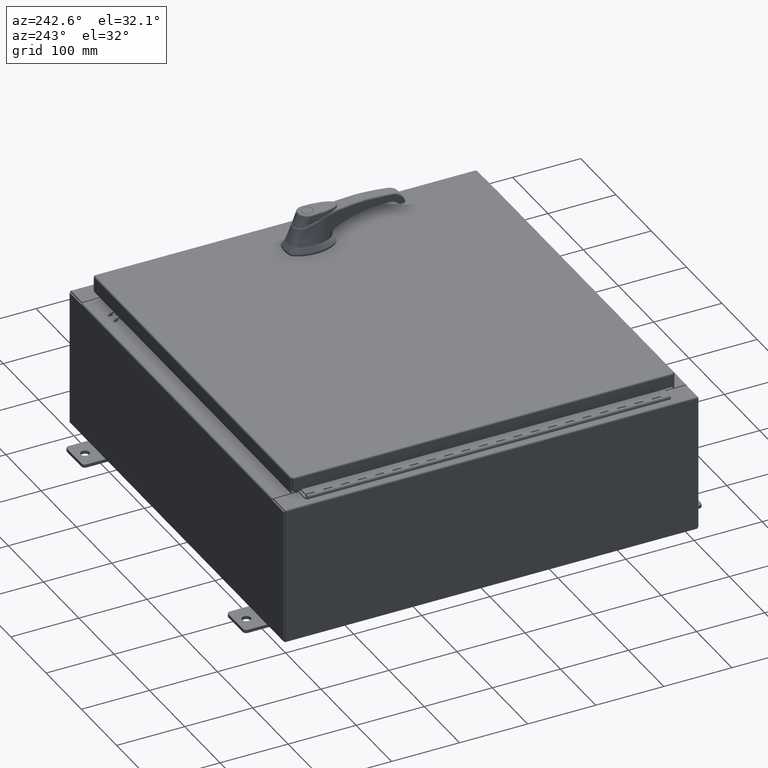
[diagram: clean part render]
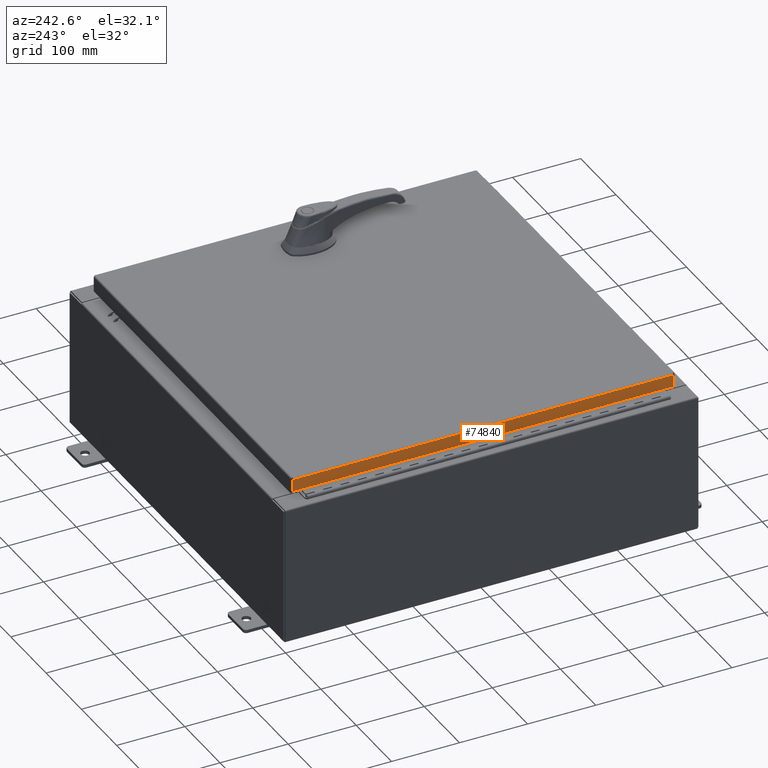
[diagram: same view with one face highlighted and labeled with its STEP entity id]
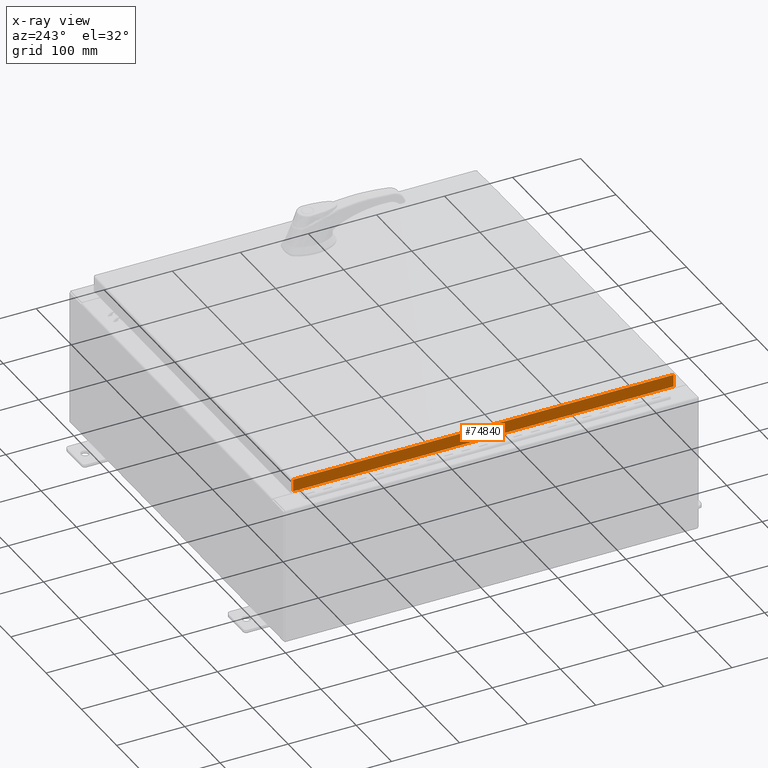
[diagram: x-ray of the same camera — body ghosted, the highlighted face saturated]
A machine part, auxiliary view. The second image highlights one B-rep face of the part: STEP entity #74840.
The next image is the same camera in x-ray: the body ghosted, the highlighted face saturated — about 0% of this face is hidden behind the body in this view.
In plain terms, the highlighted planar face has unit normal (1, 0, -0).
Its self-contained STEP definition (entity closure, byte-faithful):
#1618 = LINE ( 'NONE', #85980, #88273 ) ;
#8199 = VERTEX_POINT ( 'NONE', #61819 ) ;
#14774 = CARTESIAN_POINT ( 'NONE',  ( -11.07800000000000300, 11.00515786437626400, 1.443334371086815900E-013 ) ) ;
#15812 = DIRECTION ( 'NONE',  ( 9.849821502304913400E-017, -1.000000000000000000, -9.849821502304897400E-017 ) ) ;
#17980 = CARTESIAN_POINT ( 'NONE',  ( -11.07800000000000700, -11.09400000000000100, -0.7949999999999997100 ) ) ;
#22450 = VECTOR ( 'NONE', #78538, 39.37007874015748100 ) ;
#25423 = DIRECTION ( 'NONE',  ( -6.068244883885633100E-015, 6.982962677686265900E-015, -1.000000000000000000 ) ) ;
#27845 = FACE_OUTER_BOUND ( 'NONE', #95105, .T. ) ;
#30005 = CARTESIAN_POINT ( 'NONE',  ( -11.07800000000000300, -1.091163226025345200E-015, 6.748483047969663100E-014 ) ) ;
#35155 = ORIENTED_EDGE ( 'NONE', *, *, #79796, .F. ) ;
#37534 = VECTOR ( 'NONE', #58277, 39.37007874015748100 ) ;
#38689 = DIRECTION ( 'NONE',  ( -6.068244883885633100E-015, 0.0000000000000000000, -1.000000000000000000 ) ) ;
#41937 = EDGE_CURVE ( 'NONE', #106126, #8199, #76606, .T. ) ;
#42577 = VERTEX_POINT ( 'NONE', #85274 ) ;
#46411 = CARTESIAN_POINT ( 'NONE',  ( -11.07800000000000800, 11.00515786437626900, -0.7949999999999969300 ) ) ;
#49185 = ORIENTED_EDGE ( 'NONE', *, *, #82291, .T. ) ;
#50804 = VECTOR ( 'NONE', #15812, 39.37007874015748100 ) ;
#58277 = DIRECTION ( 'NONE',  ( -6.068244883885633100E-015, 6.982962677686265900E-015, -1.000000000000000000 ) ) ;
#60663 = LINE ( 'NONE', #14774, #37534 ) ;
#61819 = CARTESIAN_POINT ( 'NONE',  ( -11.07800000000000300, -11.00515786437627200, -0.08769999999999500400 ) ) ;
#74840 = ADVANCED_FACE ( 'NONE', ( #27845 ), #107682, .F. ) ;
#76606 = LINE ( 'NONE', #76735, #50804 ) ;
#76735 = CARTESIAN_POINT ( 'NONE',  ( -11.07800000000000300, -11.09400000000000100, -0.08769999999999982000 ) ) ;
#78538 = DIRECTION ( 'NONE',  ( -9.849821502304897400E-017, 1.000000000000000000, 1.231227687788112100E-016 ) ) ;
#79796 = EDGE_CURVE ( 'NONE', #8199, #42577, #1618, .T. ) ;
#80902 = AXIS2_PLACEMENT_3D ( 'NONE', #30005, #90627, #38689 ) ;
#82291 = EDGE_CURVE ( 'NONE', #106126, #98515, #60663, .T. ) ;
#85274 = CARTESIAN_POINT ( 'NONE',  ( -11.07800000000000700, -11.00515786437626700, -0.7949999999999997100 ) ) ;
#85980 = CARTESIAN_POINT ( 'NONE',  ( -11.07800000000000300, -11.00515786437627100, -0.07469999999999954500 ) ) ;
#86333 = EDGE_CURVE ( 'NONE', #42577, #98515, #88776, .T. ) ;
#88273 = VECTOR ( 'NONE', #25423, 39.37007874015748100 ) ;
#88509 = ORIENTED_EDGE ( 'NONE', *, *, #86333, .F. ) ;
#88776 = LINE ( 'NONE', #17980, #22450 ) ;
#90627 = DIRECTION ( 'NONE',  ( 1.000000000000000000, 9.849821502304972600E-017, -6.068244883885633100E-015 ) ) ;
#93313 = CARTESIAN_POINT ( 'NONE',  ( -11.07800000000000500, 11.00515786437626400, -0.08769999999999764100 ) ) ;
#95105 = EDGE_LOOP ( 'NONE', ( #97289, #49185, #88509, #35155 ) ) ;
#97289 = ORIENTED_EDGE ( 'NONE', *, *, #41937, .F. ) ;
#98515 = VERTEX_POINT ( 'NONE', #46411 ) ;
#106126 = VERTEX_POINT ( 'NONE', #93313 ) ;
#107682 = PLANE ( 'NONE',  #80902 ) ;